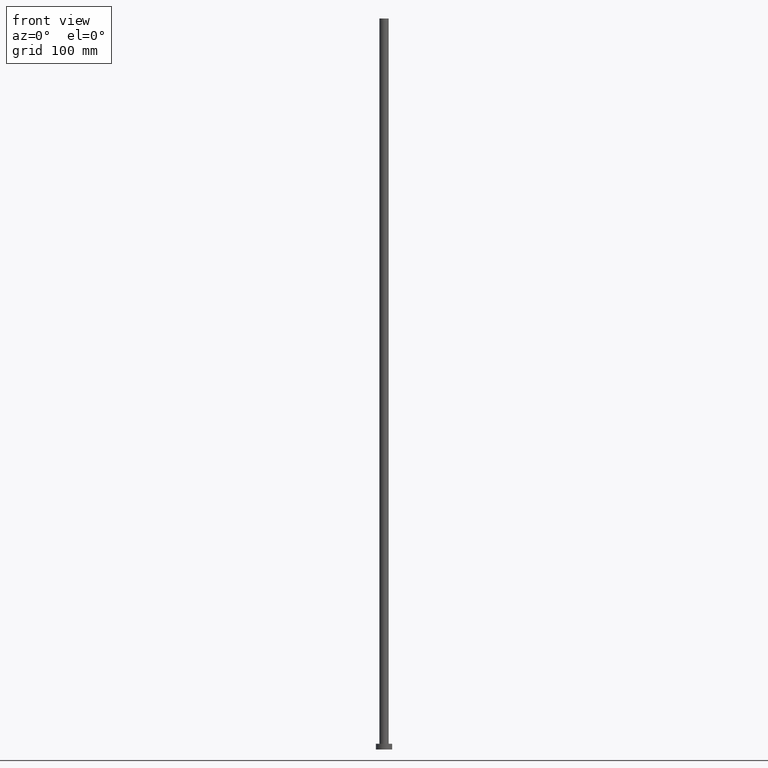
[diagram: clean part render]
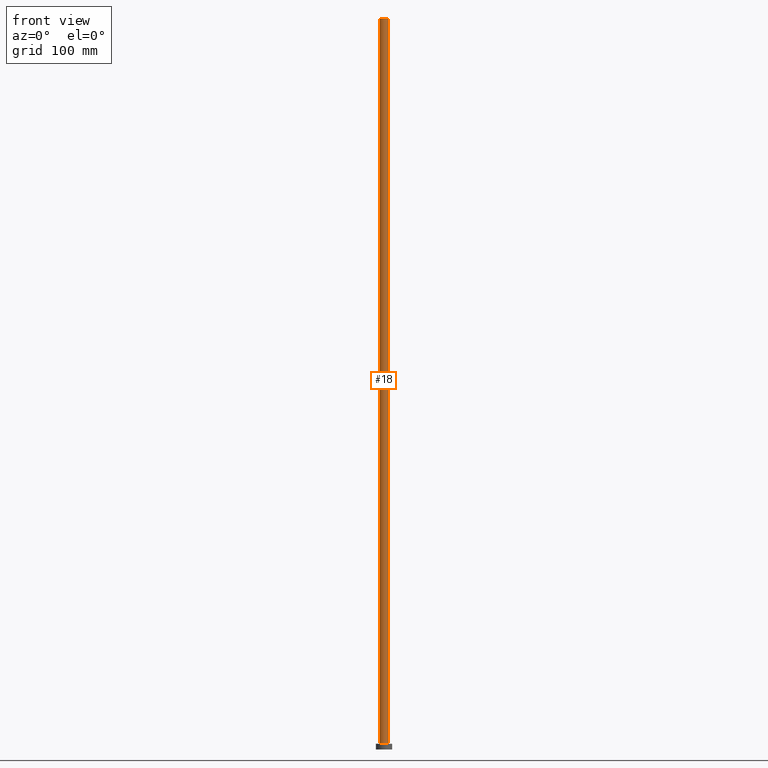
[diagram: same view with one face highlighted and labeled with its STEP entity id]
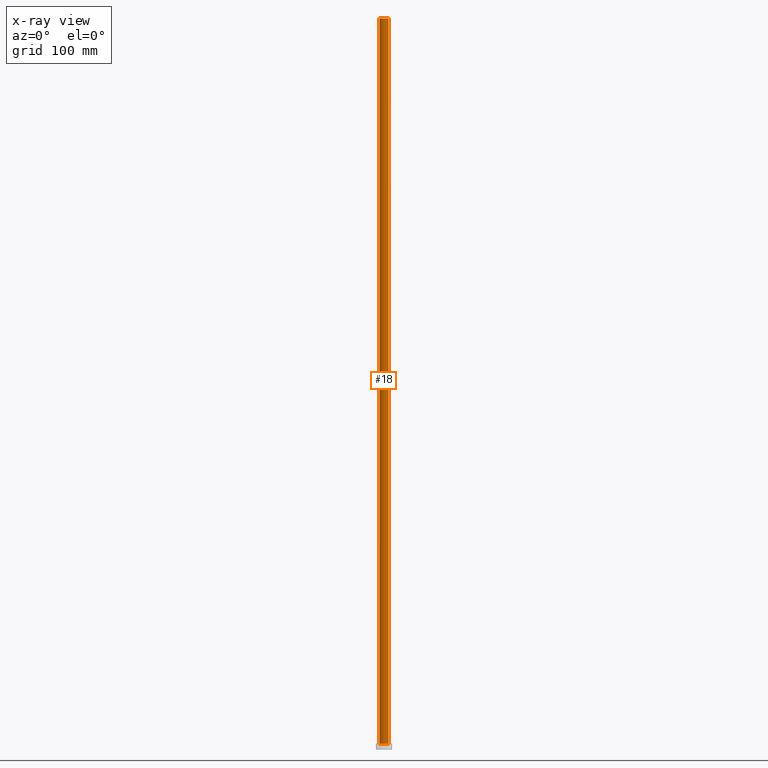
[diagram: x-ray of the same camera — body ghosted, the highlighted face saturated]
A machine part, front view. The second image highlights one B-rep face of the part: STEP entity #18.
The next image is the same camera in x-ray: the body ghosted, the highlighted face saturated — about 0% of this face is hidden behind the body in this view.
In plain terms, the highlighted cylindrical surface (edge-blend (fillet) strip) has radius 4 mm, axis along (-0, -0, -1).
Its self-contained STEP definition (entity closure, byte-faithful):
#5 = AXIS2_PLACEMENT_3D ( 'NONE', #164, #186, #157 ) ;
#7 = CARTESIAN_POINT ( 'NONE',  ( 0.000000000000000000, 0.000000000000000000, 5.000000000000000000 ) ) ;
#18 = ADVANCED_FACE ( 'NONE', ( #135 ), #27, .T. ) ;
#21 = EDGE_LOOP ( 'NONE', ( #204, #181, #241, #193 ) ) ;
#27 = CYLINDRICAL_SURFACE ( 'NONE', #5, 4.000000000000000000 ) ;
#36 = LINE ( 'NONE', #120, #112 ) ;
#43 = VECTOR ( 'NONE', #113, 1000.000000000000000 ) ;
#46 = EDGE_CURVE ( 'NONE', #219, #74, #61, .T. ) ;
#47 = CARTESIAN_POINT ( 'NONE',  ( 4.000000000000000000, 4.898587196589412829E-16, 630.0000000000000000 ) ) ;
#49 = EDGE_CURVE ( 'NONE', #177, #219, #237, .T. ) ;
#60 = EDGE_CURVE ( 'NONE', #177, #223, #105, .T. ) ;
#61 = CIRCLE ( 'NONE', #190, 4.000000000000000000 ) ;
#69 = CARTESIAN_POINT ( 'NONE',  ( -4.000000000000000000, 0.000000000000000000, 630.0000000000000000 ) ) ;
#74 = VERTEX_POINT ( 'NONE', #92 ) ;
#77 = CARTESIAN_POINT ( 'NONE',  ( -4.000000000000000000, 0.000000000000000000, 630.0000000000000000 ) ) ;
#79 = AXIS2_PLACEMENT_3D ( 'NONE', #184, #201, #132 ) ;
#90 = DIRECTION ( 'NONE',  ( 0.000000000000000000, 0.000000000000000000, 1.000000000000000000 ) ) ;
#92 = CARTESIAN_POINT ( 'NONE',  ( 4.000000000000000000, 4.898587196589412829E-16, 5.000000000000000000 ) ) ;
#105 = CIRCLE ( 'NONE', #79, 4.000000000000000000 ) ;
#112 = VECTOR ( 'NONE', #191, 1000.000000000000000 ) ;
#113 = DIRECTION ( 'NONE',  ( -0.000000000000000000, -0.000000000000000000, -1.000000000000000000 ) ) ;
#120 = CARTESIAN_POINT ( 'NONE',  ( 4.000000000000000000, 4.898587196589412829E-16, 630.0000000000000000 ) ) ;
#132 = DIRECTION ( 'NONE',  ( 1.000000000000000000, 0.000000000000000000, 0.000000000000000000 ) ) ;
#135 = FACE_OUTER_BOUND ( 'NONE', #21, .T. ) ;
#147 = CARTESIAN_POINT ( 'NONE',  ( -4.000000000000000000, 0.000000000000000000, 5.000000000000000000 ) ) ;
#157 = DIRECTION ( 'NONE',  ( -1.000000000000000000, 0.000000000000000000, 0.000000000000000000 ) ) ;
#164 = CARTESIAN_POINT ( 'NONE',  ( 0.000000000000000000, 0.000000000000000000, 630.0000000000000000 ) ) ;
#170 = DIRECTION ( 'NONE',  ( 1.000000000000000000, 0.000000000000000000, 0.000000000000000000 ) ) ;
#177 = VERTEX_POINT ( 'NONE', #77 ) ;
#178 = EDGE_CURVE ( 'NONE', #223, #74, #36, .T. ) ;
#181 = ORIENTED_EDGE ( 'NONE', *, *, #60, .F. ) ;
#184 = CARTESIAN_POINT ( 'NONE',  ( 0.000000000000000000, 0.000000000000000000, 630.0000000000000000 ) ) ;
#186 = DIRECTION ( 'NONE',  ( -0.000000000000000000, -0.000000000000000000, -1.000000000000000000 ) ) ;
#190 = AXIS2_PLACEMENT_3D ( 'NONE', #7, #90, #170 ) ;
#191 = DIRECTION ( 'NONE',  ( -0.000000000000000000, -0.000000000000000000, -1.000000000000000000 ) ) ;
#193 = ORIENTED_EDGE ( 'NONE', *, *, #46, .T. ) ;
#201 = DIRECTION ( 'NONE',  ( 0.000000000000000000, 0.000000000000000000, 1.000000000000000000 ) ) ;
#204 = ORIENTED_EDGE ( 'NONE', *, *, #178, .F. ) ;
#219 = VERTEX_POINT ( 'NONE', #147 ) ;
#223 = VERTEX_POINT ( 'NONE', #47 ) ;
#237 = LINE ( 'NONE', #69, #43 ) ;
#241 = ORIENTED_EDGE ( 'NONE', *, *, #49, .T. ) ;